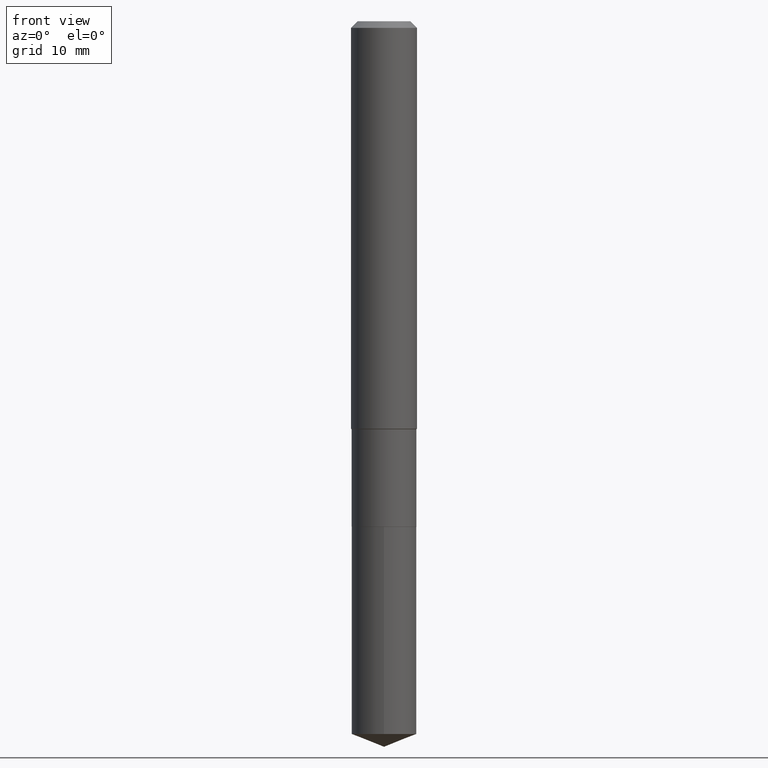
[diagram: clean part render]
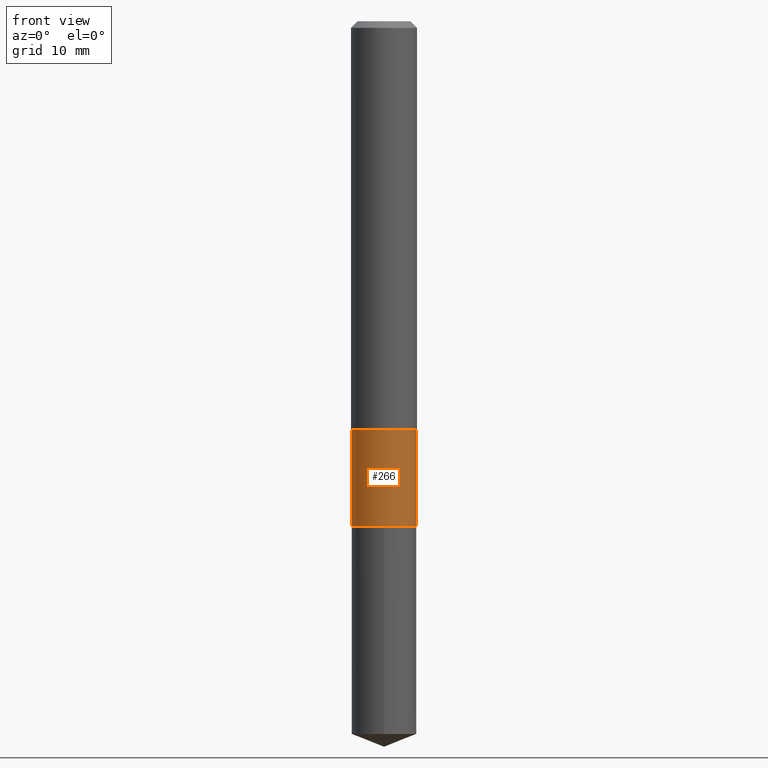
[diagram: same view with one face highlighted and labeled with its STEP entity id]
A machine part, front view. The second image highlights one B-rep face of the part: STEP entity #266.
In plain terms, the highlighted cylindrical surface (edge-blend (fillet) strip) has radius 2.9502 mm, axis along (-0, 0, 1).
Its self-contained STEP definition (entity closure, byte-faithful):
#15 = DIRECTION ( 'NONE',  ( 1.000000000000000000, -6.982962677686269866E-15, 0.000000000000000000 ) ) ;
#22 = LINE ( 'NONE', #343, #224 ) ;
#31 = CIRCLE ( 'NONE', #214, 0.1161499999999999477 ) ;
#49 = VERTEX_POINT ( 'NONE', #409 ) ;
#70 = VERTEX_POINT ( 'NONE', #323 ) ;
#72 = VECTOR ( 'NONE', #282, 39.37007874015748143 ) ;
#92 = AXIS2_PLACEMENT_3D ( 'NONE', #222, #438, #286 ) ;
#149 = VERTEX_POINT ( 'NONE', #455 ) ;
#151 = CARTESIAN_POINT ( 'NONE',  ( 0.000000000000000000, 0.000000000000000000, 0.000000000000000000 ) ) ;
#182 = CIRCLE ( 'NONE', #92, 0.1161500000000000032 ) ;
#185 = ORIENTED_EDGE ( 'NONE', *, *, #196, .F. ) ;
#196 = EDGE_CURVE ( 'NONE', #458, #149, #31, .T. ) ;
#207 = EDGE_CURVE ( 'NONE', #49, #458, #285, .T. ) ;
#212 = ORIENTED_EDGE ( 'NONE', *, *, #457, .T. ) ;
#214 = AXIS2_PLACEMENT_3D ( 'NONE', #267, #278, #15 ) ;
#216 = ORIENTED_EDGE ( 'NONE', *, *, #416, .T. ) ;
#222 = CARTESIAN_POINT ( 'NONE',  ( 4.427521273598189436E-29, -6.321326963975514491E-15, -1.810499999999999998 ) ) ;
#224 = VECTOR ( 'NONE', #229, 39.37007874015748143 ) ;
#229 = DIRECTION ( 'NONE',  ( -2.445468806185136877E-29, 3.491481338843145188E-15, 1.000000000000000000 ) ) ;
#245 = CARTESIAN_POINT ( 'NONE',  ( -0.1161499999999999477, -4.886244360561203043E-15, -1.461199999999999610 ) ) ;
#262 = EDGE_LOOP ( 'NONE', ( #445, #212, #216, #185 ) ) ;
#266 = ADVANCED_FACE ( 'NONE', ( #367 ), #327, .T. ) ;
#267 = CARTESIAN_POINT ( 'NONE',  ( 3.573319019597720765E-29, -5.101752532317603189E-15, -1.461199999999999610 ) ) ;
#269 = DIRECTION ( 'NONE',  ( 1.000000000000000000, -6.982962677686266711E-15, 4.876176775795935232E-29 ) ) ;
#278 = DIRECTION ( 'NONE',  ( -2.445468806185136597E-29, 3.491481338843145583E-15, 1.000000000000000000 ) ) ;
#282 = DIRECTION ( 'NONE',  ( -2.445468806185136877E-29, 3.491481338843145188E-15, 1.000000000000000000 ) ) ;
#285 = LINE ( 'NONE', #397, #72 ) ;
#286 = DIRECTION ( 'NONE',  ( 1.000000000000000000, -6.982962677686265922E-15, 0.000000000000000000 ) ) ;
#323 = CARTESIAN_POINT ( 'NONE',  ( 0.1161500000000000032, -7.132398078988774237E-15, -1.810499999999999998 ) ) ;
#327 = CYLINDRICAL_SURFACE ( 'NONE', #382, 0.1161499999999999755 ) ;
#343 = CARTESIAN_POINT ( 'NONE',  ( 0.1161499999999999755, -8.110711150132597459E-16, 5.663679325086977697E-30 ) ) ;
#367 = FACE_OUTER_BOUND ( 'NONE', #262, .T. ) ;
#382 = AXIS2_PLACEMENT_3D ( 'NONE', #151, #439, #269 ) ;
#397 = CARTESIAN_POINT ( 'NONE',  ( -0.1161499999999999755, 8.252953875853561917E-16, -5.713343107331072131E-30 ) ) ;
#409 = CARTESIAN_POINT ( 'NONE',  ( -0.1161500000000000032, -4.886244360561203043E-15, -1.810499999999999998 ) ) ;
#416 = EDGE_CURVE ( 'NONE', #70, #149, #22, .T. ) ;
#438 = DIRECTION ( 'NONE',  ( -2.445468806185136597E-29, 3.491481338843145583E-15, 1.000000000000000000 ) ) ;
#439 = DIRECTION ( 'NONE',  ( -2.445468806185136597E-29, 3.491481338843145583E-15, 1.000000000000000000 ) ) ;
#445 = ORIENTED_EDGE ( 'NONE', *, *, #207, .F. ) ;
#455 = CARTESIAN_POINT ( 'NONE',  ( 0.1161499999999999477, -5.912823647330862935E-15, -1.461199999999999610 ) ) ;
#457 = EDGE_CURVE ( 'NONE', #49, #70, #182, .T. ) ;
#458 = VERTEX_POINT ( 'NONE', #245 ) ;